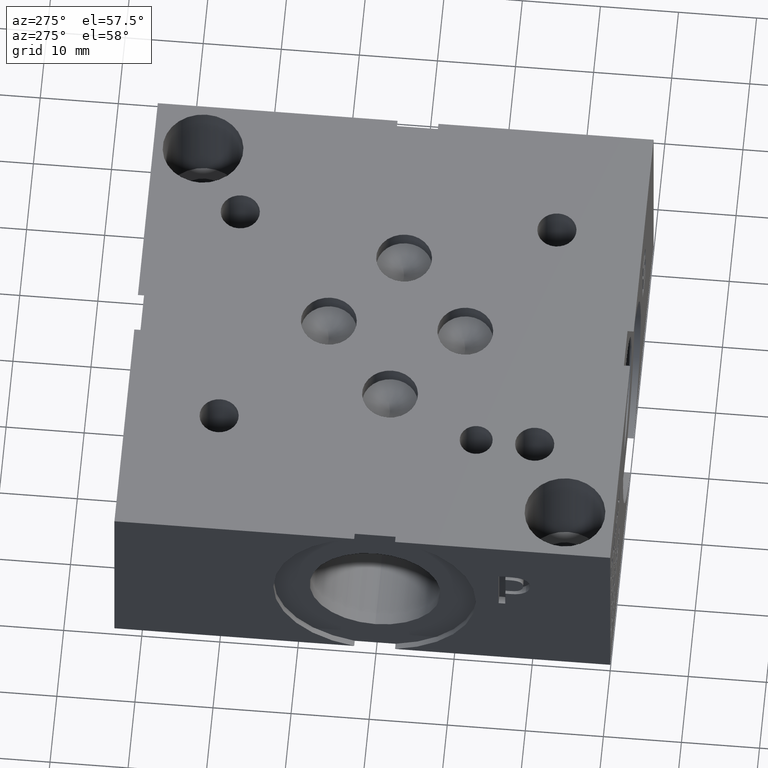
[diagram: clean part render]
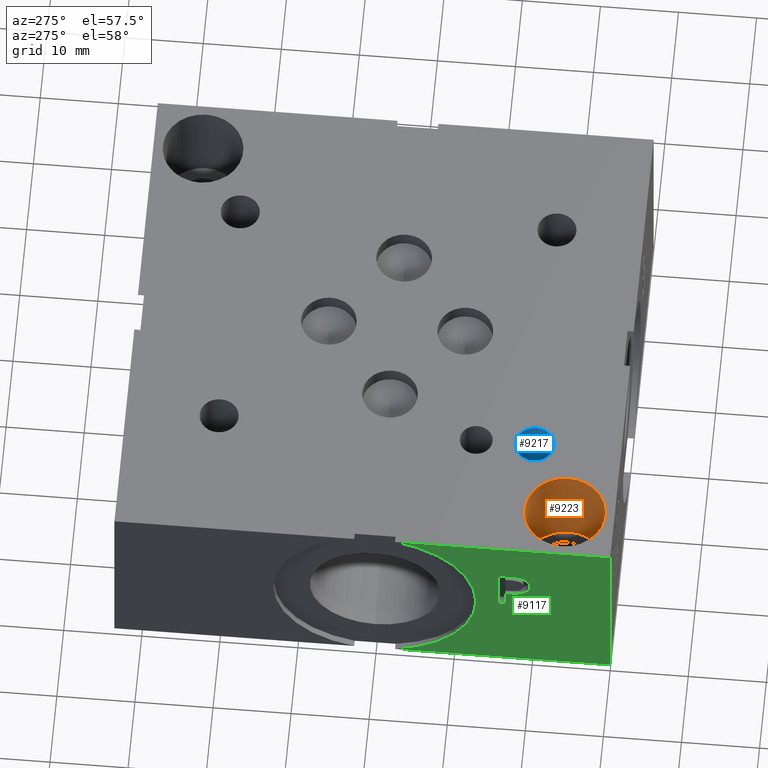
[diagram: same view with three faces highlighted in distinct colors, each labeled with its STEP entity id]
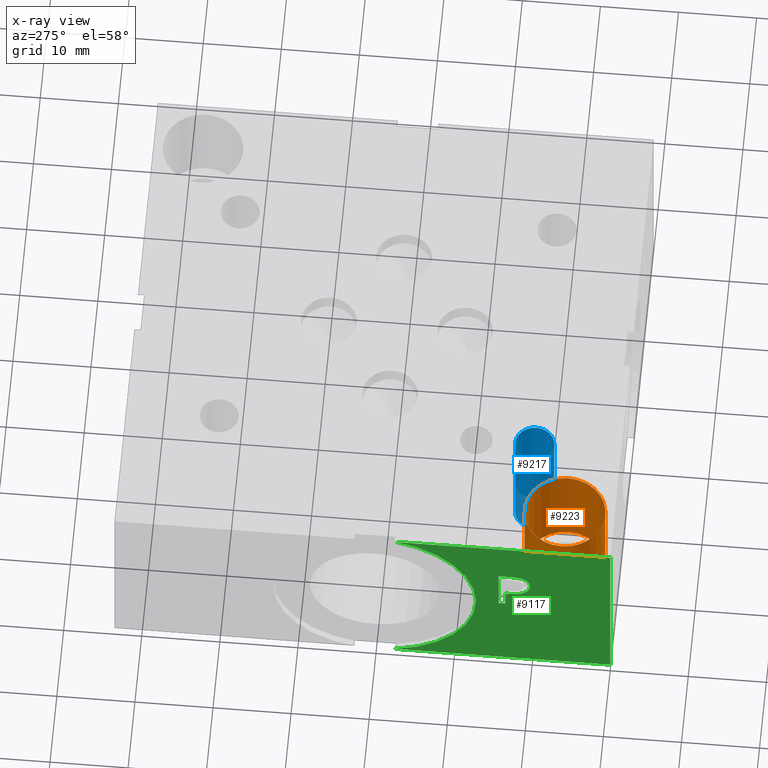
[diagram: x-ray of the same camera — body ghosted, the three highlighted faces saturated]
A machine part, auxiliary view with three faces highlighted in distinct colors.
The next image is the same camera in x-ray (body ghosted, the three faces saturated) — at least one of them is partly hidden behind the body in this view.
Their STEP definitions:

[orange] entity #9223 — the highlighted cylindrical surface (bore or boss wall) has radius 5.1562 mm, axis along (0, 0, 1).
#45=CYLINDRICAL_SURFACE('',#9666,5.1562);
#95=CIRCLE('',#9542,5.1562);
#96=CIRCLE('',#9543,5.1562);
#161=CIRCLE('',#9663,5.1562);
#162=CIRCLE('',#9664,5.1562);
#967=FACE_OUTER_BOUND('',#1496,.T.);
#1496=EDGE_LOOP('',(#8206,#8207,#8208,#8209,#8210,#8211));
#2383=LINE('',#15860,#3267);
#3267=VECTOR('',#11405,5.1562);
#4337=VERTEX_POINT('',#15610);
#4338=VERTEX_POINT('',#15611);
#4415=VERTEX_POINT('',#15853);
#4416=VERTEX_POINT('',#15854);
#5575=EDGE_CURVE('',#4337,#4338,#95,.T.);
#5576=EDGE_CURVE('',#4338,#4337,#96,.T.);
#5685=EDGE_CURVE('',#4415,#4416,#161,.T.);
#5686=EDGE_CURVE('',#4416,#4415,#162,.T.);
#5688=EDGE_CURVE('',#4338,#4416,#2383,.T.);
#8206=ORIENTED_EDGE('',*,*,#5575,.F.);
#8207=ORIENTED_EDGE('',*,*,#5576,.F.);
#8208=ORIENTED_EDGE('',*,*,#5688,.T.);
#8209=ORIENTED_EDGE('',*,*,#5685,.F.);
#8210=ORIENTED_EDGE('',*,*,#5686,.F.);
#8211=ORIENTED_EDGE('',*,*,#5688,.F.);
#9223=ADVANCED_FACE('',(#967),#45,.F.);
#9542=AXIS2_PLACEMENT_3D('',#15612,#11111,#11112);
#9543=AXIS2_PLACEMENT_3D('',#15613,#11113,#11114);
#9663=AXIS2_PLACEMENT_3D('',#15855,#11397,#11398);
#9664=AXIS2_PLACEMENT_3D('',#15856,#11399,#11400);
#9666=AXIS2_PLACEMENT_3D('',#15859,#11403,#11404);
#11111=DIRECTION('center_axis',(0.,0.,-1.));
#11112=DIRECTION('ref_axis',(1.,0.,0.));
#11113=DIRECTION('center_axis',(0.,0.,-1.));
#11114=DIRECTION('ref_axis',(1.,0.,0.));
#11397=DIRECTION('center_axis',(0.,0.,1.));
#11398=DIRECTION('ref_axis',(1.,0.,0.));
#11399=DIRECTION('center_axis',(0.,0.,1.));
#11400=DIRECTION('ref_axis',(1.,0.,0.));
#11403=DIRECTION('center_axis',(0.,0.,1.));
#11404=DIRECTION('ref_axis',(1.,0.,0.));
#11405=DIRECTION('',(0.,0.,-1.));
#15610=CARTESIAN_POINT('',(11.5062,6.35,25.4));
#15611=CARTESIAN_POINT('',(1.1938,6.35,25.4));
#15612=CARTESIAN_POINT('Origin',(6.35,6.35,25.4));
#15613=CARTESIAN_POINT('Origin',(6.35,6.35,25.4));
#15853=CARTESIAN_POINT('',(11.5062,6.35,12.7));
#15854=CARTESIAN_POINT('',(1.1938,6.35,12.7));
#15855=CARTESIAN_POINT('Origin',(6.35,6.35,12.7));
#15856=CARTESIAN_POINT('Origin',(6.35,6.35,12.7));
#15859=CARTESIAN_POINT('Origin',(6.35,6.35,19.05));
#15860=CARTESIAN_POINT('',(1.1938,6.35,19.05));

[blue] entity #9217 — the highlighted cylindrical surface (bore or boss wall) has radius 2.5019 mm, axis along (0, 0, 1).
#41=CYLINDRICAL_SURFACE('',#9654,2.5019);
#91=CIRCLE('',#9538,2.5019);
#92=CIRCLE('',#9539,2.5019);
#155=CIRCLE('',#9651,2.5019);
#156=CIRCLE('',#9652,2.5019);
#961=FACE_OUTER_BOUND('',#1488,.T.);
#1488=EDGE_LOOP('',(#8179,#8180,#8181,#8182,#8183,#8184));
#2379=LINE('',#15838,#3263);
#3263=VECTOR('',#11377,2.5019);
#4333=VERTEX_POINT('',#15602);
#4334=VERTEX_POINT('',#15603);
#4409=VERTEX_POINT('',#15831);
#4410=VERTEX_POINT('',#15832);
#5571=EDGE_CURVE('',#4333,#4334,#91,.T.);
#5572=EDGE_CURVE('',#4334,#4333,#92,.T.);
#5675=EDGE_CURVE('',#4409,#4410,#155,.T.);
#5676=EDGE_CURVE('',#4410,#4409,#156,.T.);
#5678=EDGE_CURVE('',#4334,#4410,#2379,.T.);
#8179=ORIENTED_EDGE('',*,*,#5571,.F.);
#8180=ORIENTED_EDGE('',*,*,#5572,.F.);
#8181=ORIENTED_EDGE('',*,*,#5678,.T.);
#8182=ORIENTED_EDGE('',*,*,#5675,.F.);
#8183=ORIENTED_EDGE('',*,*,#5676,.F.);
#8184=ORIENTED_EDGE('',*,*,#5678,.F.);
#9217=ADVANCED_FACE('',(#961),#41,.F.);
#9538=AXIS2_PLACEMENT_3D('',#15604,#11103,#11104);
#9539=AXIS2_PLACEMENT_3D('',#15605,#11105,#11106);
#9651=AXIS2_PLACEMENT_3D('',#15833,#11369,#11370);
#9652=AXIS2_PLACEMENT_3D('',#15834,#11371,#11372);
#9654=AXIS2_PLACEMENT_3D('',#15837,#11375,#11376);
#11103=DIRECTION('center_axis',(0.,0.,-1.));
#11104=DIRECTION('ref_axis',(1.,0.,0.));
#11105=DIRECTION('center_axis',(0.,0.,-1.));
#11106=DIRECTION('ref_axis',(1.,0.,0.));
#11369=DIRECTION('center_axis',(0.,0.,1.));
#11370=DIRECTION('ref_axis',(1.,0.,0.));
#11371=DIRECTION('center_axis',(0.,0.,1.));
#11372=DIRECTION('ref_axis',(1.,0.,0.));
#11375=DIRECTION('center_axis',(0.,0.,1.));
#11376=DIRECTION('ref_axis',(1.,0.,0.));
#11377=DIRECTION('',(0.,0.,-1.));
#15602=CARTESIAN_POINT('',(18.7833,11.0998,25.4));
#15603=CARTESIAN_POINT('',(13.7795,11.0998,25.4));
#15604=CARTESIAN_POINT('Origin',(16.2814,11.0998,25.4));
#15605=CARTESIAN_POINT('Origin',(16.2814,11.0998,25.4));
#15831=CARTESIAN_POINT('',(18.7833,11.0998,9.398));
#15832=CARTESIAN_POINT('',(13.7795,11.0998,9.398));
#15833=CARTESIAN_POINT('Origin',(16.2814,11.0998,9.398));
#15834=CARTESIAN_POINT('Origin',(16.2814,11.0998,9.398));
#15837=CARTESIAN_POINT('Origin',(16.2814,11.0998,17.399));
#15838=CARTESIAN_POINT('',(13.7795,11.0998,17.399));

[green] entity #9117 — the highlighted planar face has unit normal (-1, 0, 0).
#61=CIRCLE('',#9472,12.9667);
#192=FACE_BOUND('',#1357,.T.);
#454=PLANE('',#9471);
#861=FACE_OUTER_BOUND('',#1356,.T.);
#1356=EDGE_LOOP('',(#7629,#7630,#7631,#7632));
#1357=EDGE_LOOP('',(#7633,#7634,#7635,#7636,#7637,#7638,#7639,#7640,#7641));
#1599=LINE('',#12453,#2483);
#2213=LINE('',#15015,#3097);
#2216=LINE('',#15021,#3100);
#2219=LINE('',#15027,#3103);
#2222=LINE('',#15033,#3106);
#2225=LINE('',#15039,#3109);
#2229=LINE('',#15083,#3113);
#2230=LINE('',#15084,#3114);
#2483=VECTOR('',#9813,10.);
#3097=VECTOR('',#10833,10.);
#3100=VECTOR('',#10838,10.);
#3103=VECTOR('',#10843,10.);
#3106=VECTOR('',#10848,10.);
#3109=VECTOR('',#10853,10.);
#3113=VECTOR('',#10863,10.);
#3114=VECTOR('',#10864,10.);
#3517=B_SPLINE_CURVE_WITH_KNOTS('',2,(#14982,#14983,#14984,#14985),
 .UNSPECIFIED.,.F.,.F.,(3,1,3),(0.,1.,2.),.UNSPECIFIED.);
#3519=B_SPLINE_CURVE_WITH_KNOTS('',2,(#15003,#15004,#15005,#15006),
 .UNSPECIFIED.,.F.,.F.,(3,1,3),(0.,1.,2.),.UNSPECIFIED.);
#3521=B_SPLINE_CURVE_WITH_KNOTS('',2,(#15052,#15053,#15054,#15055),
 .UNSPECIFIED.,.F.,.F.,(3,1,3),(0.,1.,2.),.UNSPECIFIED.);
#3523=B_SPLINE_CURVE_WITH_KNOTS('',2,(#15070,#15071,#15072,#15073),
 .UNSPECIFIED.,.F.,.F.,(3,1,3),(0.,1.,2.),.UNSPECIFIED.);
#3685=VERTEX_POINT('',#12450);
#3686=VERTEX_POINT('',#12452);
#4193=VERTEX_POINT('',#14980);
#4194=VERTEX_POINT('',#14981);
#4197=VERTEX_POINT('',#15002);
#4199=VERTEX_POINT('',#15014);
#4201=VERTEX_POINT('',#15020);
#4203=VERTEX_POINT('',#15026);
#4205=VERTEX_POINT('',#15032);
#4207=VERTEX_POINT('',#15038);
#4209=VERTEX_POINT('',#15051);
#4211=VERTEX_POINT('',#15080);
#4212=VERTEX_POINT('',#15081);
#4615=EDGE_CURVE('',#3686,#3685,#1599,.T.);
#5376=EDGE_CURVE('',#4193,#4194,#3517,.T.);
#5380=EDGE_CURVE('',#4197,#4193,#3519,.T.);
#5383=EDGE_CURVE('',#4199,#4197,#2213,.T.);
#5386=EDGE_CURVE('',#4201,#4199,#2216,.T.);
#5389=EDGE_CURVE('',#4203,#4201,#2219,.T.);
#5392=EDGE_CURVE('',#4205,#4203,#2222,.T.);
#5395=EDGE_CURVE('',#4207,#4205,#2225,.T.);
#5398=EDGE_CURVE('',#4209,#4207,#3521,.T.);
#5401=EDGE_CURVE('',#4194,#4209,#3523,.T.);
#5403=EDGE_CURVE('',#4211,#4212,#61,.T.);
#5404=EDGE_CURVE('',#4212,#3686,#2229,.T.);
#5405=EDGE_CURVE('',#4211,#3685,#2230,.T.);
#7629=ORIENTED_EDGE('',*,*,#5403,.T.);
#7630=ORIENTED_EDGE('',*,*,#5404,.T.);
#7631=ORIENTED_EDGE('',*,*,#4615,.T.);
#7632=ORIENTED_EDGE('',*,*,#5405,.F.);
#7633=ORIENTED_EDGE('',*,*,#5376,.T.);
#7634=ORIENTED_EDGE('',*,*,#5401,.T.);
#7635=ORIENTED_EDGE('',*,*,#5398,.T.);
#7636=ORIENTED_EDGE('',*,*,#5395,.T.);
#7637=ORIENTED_EDGE('',*,*,#5392,.T.);
#7638=ORIENTED_EDGE('',*,*,#5389,.T.);
#7639=ORIENTED_EDGE('',*,*,#5386,.T.);
#7640=ORIENTED_EDGE('',*,*,#5383,.T.);
#7641=ORIENTED_EDGE('',*,*,#5380,.T.);
#9117=ADVANCED_FACE('',(#861,#192),#454,.T.);
#9471=AXIS2_PLACEMENT_3D('',#15079,#10859,#10860);
#9472=AXIS2_PLACEMENT_3D('',#15082,#10861,#10862);
#9813=DIRECTION('',(0.,0.,1.));
#10833=DIRECTION('',(0.,-1.,-2.78387652113388E-15));
#10838=DIRECTION('',(0.,-3.49676548440641E-15,1.));
#10843=DIRECTION('',(0.,1.,2.63110280960824E-15));
#10848=DIRECTION('',(0.,3.75218139805E-15,-1.));
#10853=DIRECTION('',(0.,1.,3.10432273939388E-15));
#10859=DIRECTION('center_axis',(-1.,0.,0.));
#10860=DIRECTION('ref_axis',(0.,-1.,0.));
#10861=DIRECTION('center_axis',(1.,0.,0.));
#10862=DIRECTION('ref_axis',(0.,0.,1.));
#10863=DIRECTION('',(0.,-1.,0.));
#10864=DIRECTION('',(0.,-1.,0.));
#12450=CARTESIAN_POINT('',(0.,0.,25.4));
#12452=CARTESIAN_POINT('',(0.,0.,0.));
#12453=CARTESIAN_POINT('',(0.,0.,0.));
#14980=CARTESIAN_POINT('',(0.,11.0346327976406,18.6537681439707));
#14981=CARTESIAN_POINT('',(0.,10.278190345468,17.1357373726039));
#14982=CARTESIAN_POINT('Ctrl Pts',(0.,11.0346327976406,18.6537681439707));
#14983=CARTESIAN_POINT('Ctrl Pts',(0.,10.6795679731514,18.4119123939563));
#14984=CARTESIAN_POINT('Ctrl Pts',(0.,10.278190345468,17.6657616758269));
#14985=CARTESIAN_POINT('Ctrl Pts',(0.,10.278190345468,17.1357373726039));
#15002=CARTESIAN_POINT('',(0.,12.6967478456117,19.0499999046326));
#15003=CARTESIAN_POINT('Ctrl Pts',(0.,12.6967478456117,19.0499999046326));
#15004=CARTESIAN_POINT('Ctrl Pts',(0.,12.1307024732376,19.0499999046326));
#15005=CARTESIAN_POINT('Ctrl Pts',(0.,11.3382389519139,18.8647486918556));
#15006=CARTESIAN_POINT('Ctrl Pts',(0.,11.0346327976406,18.6537681439707));
#15014=CARTESIAN_POINT('',(0.,14.2919666223022,19.0499999046326));
#15015=CARTESIAN_POINT('',(0.,38.8959833111511,19.0499999046326));
#15020=CARTESIAN_POINT('',(0.,14.2919666223022,12.7));
#15021=CARTESIAN_POINT('',(0.,14.2919666223022,6.34999999999991));
#15026=CARTESIAN_POINT('',(0.,13.4480444307627,12.7));
#15027=CARTESIAN_POINT('',(0.,38.4740222153813,12.7000000000001));
#15032=CARTESIAN_POINT('',(0.,13.4480444307627,15.0670988299279));
#15033=CARTESIAN_POINT('',(0.,13.4480444307627,7.53354941496383));
#15038=CARTESIAN_POINT('',(0.,12.7327689147628,15.0670988299279));
#15039=CARTESIAN_POINT('',(0.,38.1163844573814,15.0670988299279));
#15051=CARTESIAN_POINT('',(0.,10.8339439837989,15.7257698086904));
#15052=CARTESIAN_POINT('Ctrl Pts',(0.,10.8339439837989,15.7257698086904));
#15053=CARTESIAN_POINT('Ctrl Pts',(0.,11.1632794731802,15.4015801863307));
#15054=CARTESIAN_POINT('Ctrl Pts',(0.,12.0535144679139,15.0670988299279));
#15055=CARTESIAN_POINT('Ctrl Pts',(0.,12.7327689147628,15.0670988299279));
#15070=CARTESIAN_POINT('Ctrl Pts',(0.,10.278190345468,17.1357373726039));
#15071=CARTESIAN_POINT('Ctrl Pts',(0.,10.278190345468,16.7240680108773));
#15072=CARTESIAN_POINT('Ctrl Pts',(0.,10.5715047656982,15.9830631597695));
#15073=CARTESIAN_POINT('Ctrl Pts',(0.,10.8339439837989,15.7257698086904));
#15079=CARTESIAN_POINT('Origin',(0.,63.5,0.));
#15080=CARTESIAN_POINT('',(0.,27.5588458783261,25.4));
#15081=CARTESIAN_POINT('',(0.,27.5588458783261,0.));
#15082=CARTESIAN_POINT('Origin',(0.,30.1752,12.7));
#15083=CARTESIAN_POINT('',(0.,63.5,0.));
#15084=CARTESIAN_POINT('',(0.,63.5,25.4));